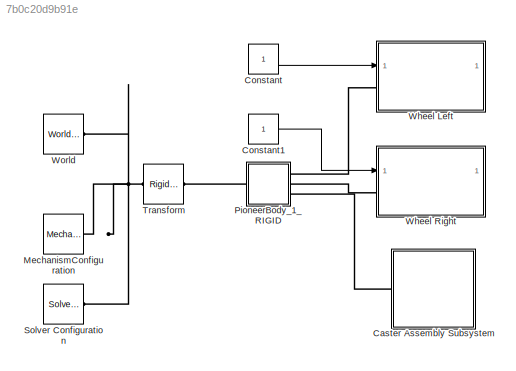
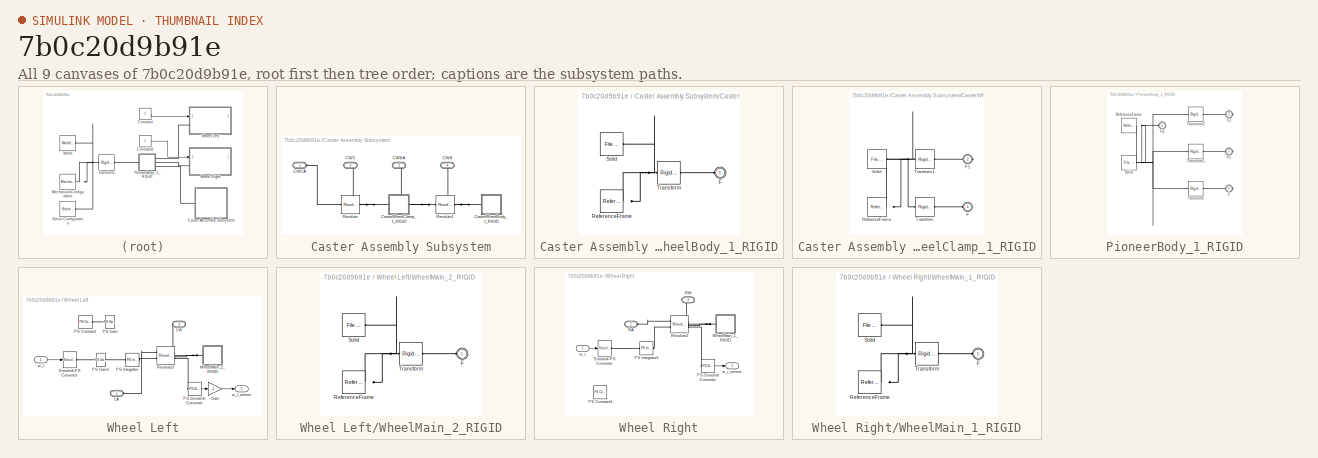
[diagram: thumbnail index - all 9 canvases of the model, root first then tree order]
MODEL slx_7b0c20d9b91e
KIND model
CONFIG AbsTol = auto
CONFIG EnableMultiTasking = on
CONFIG FixedStep = auto
CONFIG MaxStep = auto
CONFIG MinStep = auto
CONFIG RelTol = 1e-3
CONFIG SampleTimeConstraint = Unconstrained
CONFIG Solver = ode45
CONFIG SolverName = ode45
CONFIG StartTime = 0.0
CONFIG StopTime = 10.0
BLOCK [SubSystem] Caster Assembly Subsystem
  Ports = [0, 0, 0, 0, 0, 1, 3]
  RequestExecContextInheritance = off
BLOCK [PMIOPort] Caster Assembly Subsystem/CWB
  Port = 4
  Side = Right
BLOCK [PMIOPort] Caster Assembly Subsystem/CWBA
  Port = 3
  Side = Right
BLOCK [PMIOPort] Caster Assembly Subsystem/CWC
  Port = 2
  Side = Right
BLOCK [PMIOPort] Caster Assembly Subsystem/CWCA
  Side = Left
BLOCK [SubSystem] Caster Assembly Subsystem/CasterWheelBody_1_RIGID
  Ports = [0, 0, 0, 0, 0, 1]
  RequestExecContextInheritance = off
BLOCK [PMIOPort] Caster Assembly Subsystem/CasterWheelBody_1_RIGID/F
  Side = Left
BLOCK [Reference] Caster Assembly Subsystem/CasterWheelBody_1_RIGID/ReferenceFrame  REF=sm_lib/Frames and
Transforms/Reference
Frame
  Ports = [0, 0, 0, 0, 0, 0, 1]
  SourceBlock = sm_lib/Frames and\nTransforms/Reference\nFrame
  SourceProductBaseCode = MS
  SourceProductName = Simscape Multibody
  SourceType = Reference\nFrame
BLOCK [Reference] Caster Assembly Subsystem/CasterWheelBody_1_RIGID/Solid  REF=sm_lib/Body Elements/File Solid
  Ports = [0, 0, 0, 0, 0, 0, 1]
  SourceBlock = sm_lib/Body Elements/File Solid
  SourceProductBaseCode = MS
  SourceProductName = Simscape Multibody
  SourceType = File Solid
BLOCK [Reference] Caster Assembly Subsystem/CasterWheelBody_1_RIGID/Transform  REF=sm_lib/Frames and
Transforms/Rigid
Transform
  Ports = [0, 0, 0, 0, 0, 1, 1]
  SourceBlock = sm_lib/Frames and\nTransforms/Rigid\nTransform
  SourceProductBaseCode = MS
  SourceProductName = Simscape Multibody
  SourceType = Rigid\nTransform
BLOCK [SubSystem] Caster Assembly Subsystem/CasterWheelClamp_1_RIGID
  Ports = [0, 0, 0, 0, 0, 1, 1]
  RequestExecContextInheritance = off
BLOCK [PMIOPort] Caster Assembly Subsystem/CasterWheelClamp_1_RIGID/F
  Side = Left
BLOCK [PMIOPort] Caster Assembly Subsystem/CasterWheelClamp_1_RIGID/F1
  Port = 2
  Side = Right
BLOCK [Reference] Caster Assembly Subsystem/CasterWheelClamp_1_RIGID/ReferenceFrame  REF=sm_lib/Frames and
Transforms/Reference
Frame
  Ports = [0, 0, 0, 0, 0, 0, 1]
  SourceBlock = sm_lib/Frames and\nTransforms/Reference\nFrame
  SourceProductBaseCode = MS
  SourceProductName = Simscape Multibody
  SourceType = Reference\nFrame
BLOCK [Reference] Caster Assembly Subsystem/CasterWheelClamp_1_RIGID/Solid  REF=sm_lib/Body Elements/File Solid
  Ports = [0, 0, 0, 0, 0, 0, 1]
  SourceBlock = sm_lib/Body Elements/File Solid
  SourceProductBaseCode = MS
  SourceProductName = Simscape Multibody
  SourceType = File Solid
BLOCK [Reference] Caster Assembly Subsystem/CasterWheelClamp_1_RIGID/Transform  REF=sm_lib/Frames and
Transforms/Rigid
Transform
  Ports = [0, 0, 0, 0, 0, 1, 1]
  SourceBlock = sm_lib/Frames and\nTransforms/Rigid\nTransform
  SourceProductBaseCode = MS
  SourceProductName = Simscape Multibody
  SourceType = Rigid\nTransform
BLOCK [Reference] Caster Assembly Subsystem/CasterWheelClamp_1_RIGID/Transform1  REF=sm_lib/Frames and
Transforms/Rigid
Transform
  Ports = [0, 0, 0, 0, 0, 1, 1]
  SourceBlock = sm_lib/Frames and\nTransforms/Rigid\nTransform
  SourceProductBaseCode = MS
  SourceProductName = Simscape Multibody
  SourceType = Rigid\nTransform
BLOCK [Reference] Caster Assembly Subsystem/Revolute  REF=sm_lib/Joints/Revolute Joint
  Ports = [0, 0, 0, 0, 0, 1, 1]
  SourceBlock = sm_lib/Joints/Revolute Joint
  SourceProductBaseCode = MS
  SourceProductName = Simscape Multibody
  SourceType = Revolute Joint
BLOCK [Reference] Caster Assembly Subsystem/Revolute1  REF=sm_lib/Joints/Revolute Joint
  Ports = [0, 0, 0, 0, 0, 1, 1]
  SourceBlock = sm_lib/Joints/Revolute Joint
  SourceProductBaseCode = MS
  SourceProductName = Simscape Multibody
  SourceType = Revolute Joint
BLOCK [Constant] Constant
BLOCK [Constant] Constant1
BLOCK [Reference] MechanismConfiguration  REF=sm_lib/Utilities/Mechanism
Configuration
  Ports = [0, 0, 0, 0, 0, 0, 1]
  SourceBlock = sm_lib/Utilities/Mechanism\nConfiguration
  SourceProductBaseCode = MS
  SourceProductName = Simscape Multibody
  SourceType = Mechanism\nConfiguration
BLOCK [SubSystem] PioneerBody_1_RIGID
  Ports = [0, 0, 0, 0, 0, 1, 3]
  RequestExecContextInheritance = off
BLOCK [PMIOPort] PioneerBody_1_RIGID/F
  Port = 4
  Side = Right
BLOCK [PMIOPort] PioneerBody_1_RIGID/F1
  Port = 3
  Side = Right
BLOCK [PMIOPort] PioneerBody_1_RIGID/F2
  Port = 2
  Side = Right
BLOCK [PMIOPort] PioneerBody_1_RIGID/F3
  Side = Left
BLOCK [Reference] PioneerBody_1_RIGID/ReferenceFrame  REF=sm_lib/Frames and
Transforms/Reference
Frame
  Ports = [0, 0, 0, 0, 0, 0, 1]
  SourceBlock = sm_lib/Frames and\nTransforms/Reference\nFrame
  SourceProductBaseCode = MS
  SourceProductName = Simscape Multibody
  SourceType = Reference\nFrame
BLOCK [Reference] PioneerBody_1_RIGID/Solid  REF=sm_lib/Body Elements/File Solid
  Ports = [0, 0, 0, 0, 0, 0, 1]
  SourceBlock = sm_lib/Body Elements/File Solid
  SourceProductBaseCode = MS
  SourceProductName = Simscape Multibody
  SourceType = File Solid
BLOCK [Reference] PioneerBody_1_RIGID/Transform  REF=sm_lib/Frames and
Transforms/Rigid
Transform
  Ports = [0, 0, 0, 0, 0, 1, 1]
  SourceBlock = sm_lib/Frames and\nTransforms/Rigid\nTransform
  SourceProductBaseCode = MS
  SourceProductName = Simscape Multibody
  SourceType = Rigid\nTransform
BLOCK [Reference] PioneerBody_1_RIGID/Transform1  REF=sm_lib/Frames and
Transforms/Rigid
Transform
  Ports = [0, 0, 0, 0, 0, 1, 1]
  SourceBlock = sm_lib/Frames and\nTransforms/Rigid\nTransform
  SourceProductBaseCode = MS
  SourceProductName = Simscape Multibody
  SourceType = Rigid\nTransform
BLOCK [Reference] PioneerBody_1_RIGID/Transform2  REF=sm_lib/Frames and
Transforms/Rigid
Transform
  Ports = [0, 0, 0, 0, 0, 1, 1]
  SourceBlock = sm_lib/Frames and\nTransforms/Rigid\nTransform
  SourceProductBaseCode = MS
  SourceProductName = Simscape Multibody
  SourceType = Rigid\nTransform
BLOCK [Reference] Solver Configuration  REF=nesl_utility/Solver
Configuration
  Ports = [0, 0, 0, 0, 0, 0, 1]
  SourceBlock = nesl_utility/Solver\nConfiguration
  SourceProductBaseCode = SS
  SourceProductName = Simscape
  SourceType = Solver\nConfiguration
BLOCK [Reference] Transform  REF=sm_lib/Frames and
Transforms/Rigid
Transform
  Ports = [0, 0, 0, 0, 0, 1, 1]
  SourceBlock = sm_lib/Frames and\nTransforms/Rigid\nTransform
  SourceProductBaseCode = MS
  SourceProductName = Simscape Multibody
  SourceType = Rigid\nTransform
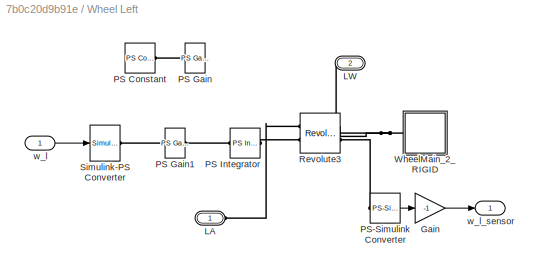
BLOCK [SubSystem] Wheel Left
  Ports = [1, 1, 0, 0, 0, 1, 1]
  RequestExecContextInheritance = off
BLOCK [Gain] Wheel Left/Gain
  Gain = -1
  OutDataTypeStr = Inherit: Inherit via internal rule
  ParamDataTypeStr = Inherit: Inherit via internal rule
  SaturateOnIntegerOverflow = off
BLOCK [PMIOPort] Wheel Left/LA
  Side = Left
BLOCK [PMIOPort] Wheel Left/LW
  Port = 2
  Side = Right
BLOCK [Reference] Wheel Left/PS Constant  REF=fl_lib/Physical Signals/Sources/PS Constant
  Commented = on
  Ports = [0, 0, 0, 0, 0, 0, 1]
  SourceBlock = fl_lib/Physical Signals/Sources/PS Constant
  SourceProductBaseCode = SS
  SourceProductName = Simscape
  SourceType = PS Constant
BLOCK [Reference] Wheel Left/PS Gain  REF=fl_lib/Physical Signals/Functions/PS Gain
  Commented = on
  Ports = [0, 0, 0, 0, 0, 1, 1]
  SourceBlock = fl_lib/Physical Signals/Functions/PS Gain
  SourceProductBaseCode = SS
  SourceProductName = Simscape
  SourceType = PS Gain
BLOCK [Reference] Wheel Left/PS Gain1  REF=fl_ps_legacy_lib/Legacy Physical
Signals/Functions/PS Gain
  Ports = [0, 0, 0, 0, 0, 1, 1]
  SourceBlock = fl_ps_legacy_lib/Legacy Physical\nSignals/Functions/PS Gain
  SourceProductBaseCode = SS
  SourceProductName = Simscape
  SourceType = PS Gain
BLOCK [Reference] Wheel Left/PS Integrator  REF=fl_ps_legacy_lib/Legacy Physical
Signals/Linear Operators/PS Integrator
  Ports = [0, 0, 0, 0, 0, 1, 1]
  SourceBlock = fl_ps_legacy_lib/Legacy Physical\nSignals/Linear Operators/PS Integrator
  SourceProductBaseCode = SS
  SourceProductName = Simscape
  SourceType = PS Integrator
BLOCK [Reference] Wheel Left/PS-Simulink Converter  REF=nesl_utility/PS-Simulink
Converter
  Ports = [0, 1, 0, 0, 0, 1]
  SourceBlock = nesl_utility/PS-Simulink\nConverter
  SourceProductBaseCode = SS
  SourceProductName = Simscape
  SourceType = PS-Simulink\nConverter
BLOCK [Reference] Wheel Left/Revolute3  REF=sm_lib/Joints/Revolute Joint
  Ports = [0, 0, 0, 0, 0, 2, 2]
  SourceBlock = sm_lib/Joints/Revolute Joint
  SourceProductBaseCode = MS
  SourceProductName = Simscape Multibody
  SourceType = Revolute Joint
BLOCK [Reference] Wheel Left/Simulink-PS Converter  REF=nesl_utility/Simulink-PS
Converter
  Ports = [1, 0, 0, 0, 0, 0, 1]
  SourceBlock = nesl_utility/Simulink-PS\nConverter
  SourceProductBaseCode = SS
  SourceProductName = Simscape
  SourceType = Simulink-PS\nConverter
BLOCK [SubSystem] Wheel Left/WheelMain_2_RIGID
  Ports = [0, 0, 0, 0, 0, 1]
  RequestExecContextInheritance = off
BLOCK [PMIOPort] Wheel Left/WheelMain_2_RIGID/F
  Side = Left
BLOCK [Reference] Wheel Left/WheelMain_2_RIGID/ReferenceFrame  REF=sm_lib/Frames and
Transforms/Reference
Frame
  Ports = [0, 0, 0, 0, 0, 0, 1]
  SourceBlock = sm_lib/Frames and\nTransforms/Reference\nFrame
  SourceProductBaseCode = MS
  SourceProductName = Simscape Multibody
  SourceType = Reference\nFrame
BLOCK [Reference] Wheel Left/WheelMain_2_RIGID/Solid  REF=sm_lib/Body Elements/File Solid
  Ports = [0, 0, 0, 0, 0, 0, 1]
  SourceBlock = sm_lib/Body Elements/File Solid
  SourceProductBaseCode = MS
  SourceProductName = Simscape Multibody
  SourceType = File Solid
BLOCK [Reference] Wheel Left/WheelMain_2_RIGID/Transform  REF=sm_lib/Frames and
Transforms/Rigid
Transform
  Ports = [0, 0, 0, 0, 0, 1, 1]
  SourceBlock = sm_lib/Frames and\nTransforms/Rigid\nTransform
  SourceProductBaseCode = MS
  SourceProductName = Simscape Multibody
  SourceType = Rigid\nTransform
BLOCK [Inport] Wheel Left/w_l
  IconDisplay = Port number
BLOCK [Outport] Wheel Left/w_l_sensor
  IconDisplay = Port number
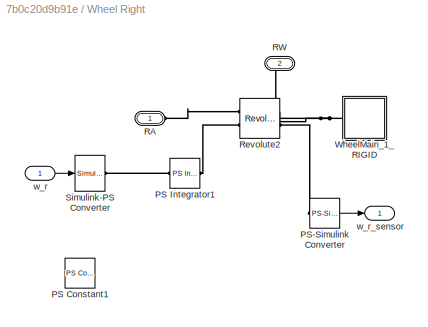
BLOCK [SubSystem] Wheel Right
  Ports = [1, 1, 0, 0, 0, 1, 1]
  RequestExecContextInheritance = off
BLOCK [Reference] Wheel Right/PS Constant1  REF=fl_lib/Physical Signals/Sources/PS Constant
  Commented = on
  Ports = [0, 0, 0, 0, 0, 0, 1]
  SourceBlock = fl_lib/Physical Signals/Sources/PS Constant
  SourceProductBaseCode = SS
  SourceProductName = Simscape
  SourceType = PS Constant
BLOCK [Reference] Wheel Right/PS Integrator1  REF=fl_ps_legacy_lib/Legacy Physical
Signals/Linear Operators/PS Integrator
  Ports = [0, 0, 0, 0, 0, 1, 1]
  SourceBlock = fl_ps_legacy_lib/Legacy Physical\nSignals/Linear Operators/PS Integrator
  SourceProductBaseCode = SS
  SourceProductName = Simscape
  SourceType = PS Integrator
BLOCK [Reference] Wheel Right/PS-Simulink Converter  REF=nesl_utility/PS-Simulink
Converter
  Ports = [0, 1, 0, 0, 0, 1]
  SourceBlock = nesl_utility/PS-Simulink\nConverter
  SourceProductBaseCode = SS
  SourceProductName = Simscape
  SourceType = PS-Simulink\nConverter
BLOCK [PMIOPort] Wheel Right/RA
  Side = Left
BLOCK [PMIOPort] Wheel Right/RW
  Port = 2
  Side = Right
BLOCK [Reference] Wheel Right/Revolute2  REF=sm_lib/Joints/Revolute Joint
  Ports = [0, 0, 0, 0, 0, 2, 2]
  SourceBlock = sm_lib/Joints/Revolute Joint
  SourceProductBaseCode = MS
  SourceProductName = Simscape Multibody
  SourceType = Revolute Joint
BLOCK [Reference] Wheel Right/Simulink-PS Converter  REF=nesl_utility/Simulink-PS
Converter
  Ports = [1, 0, 0, 0, 0, 0, 1]
  SourceBlock = nesl_utility/Simulink-PS\nConverter
  SourceProductBaseCode = SS
  SourceProductName = Simscape
  SourceType = Simulink-PS\nConverter
BLOCK [SubSystem] Wheel Right/WheelMain_1_RIGID
  Ports = [0, 0, 0, 0, 0, 1]
  RequestExecContextInheritance = off
BLOCK [PMIOPort] Wheel Right/WheelMain_1_RIGID/F
  Side = Left
BLOCK [Reference] Wheel Right/WheelMain_1_RIGID/ReferenceFrame  REF=sm_lib/Frames and
Transforms/Reference
Frame
  Ports = [0, 0, 0, 0, 0, 0, 1]
  SourceBlock = sm_lib/Frames and\nTransforms/Reference\nFrame
  SourceProductBaseCode = MS
  SourceProductName = Simscape Multibody
  SourceType = Reference\nFrame
BLOCK [Reference] Wheel Right/WheelMain_1_RIGID/Solid  REF=sm_lib/Body Elements/File Solid
  Ports = [0, 0, 0, 0, 0, 0, 1]
  SourceBlock = sm_lib/Body Elements/File Solid
  SourceProductBaseCode = MS
  SourceProductName = Simscape Multibody
  SourceType = File Solid
BLOCK [Reference] Wheel Right/WheelMain_1_RIGID/Transform  REF=sm_lib/Frames and
Transforms/Rigid
Transform
  Ports = [0, 0, 0, 0, 0, 1, 1]
  SourceBlock = sm_lib/Frames and\nTransforms/Rigid\nTransform
  SourceProductBaseCode = MS
  SourceProductName = Simscape Multibody
  SourceType = Rigid\nTransform
BLOCK [Inport] Wheel Right/w_r
  IconDisplay = Port number
BLOCK [Outport] Wheel Right/w_r_sensor
  IconDisplay = Port number
BLOCK [Reference] World  REF=sm_lib/Frames and
Transforms/World Frame
  Ports = [0, 0, 0, 0, 0, 0, 1]
  SourceBlock = sm_lib/Frames and\nTransforms/World Frame
  SourceProductBaseCode = MS
  SourceProductName = Simscape Multibody
  SourceType = World Frame
LINE Constant1:1 -> Wheel Right:1
LINE Constant:1 -> Wheel Left:1
LINE Wheel Left/Gain:1 -> Wheel Left/w_l_sensor:1
LINE Wheel Left/PS-Simulink Converter:1 -> Wheel Left/Gain:1
LINE Wheel Left/w_l:1 -> Wheel Left/Simulink-PS Converter:1
LINE Wheel Right/PS-Simulink Converter:1 -> Wheel Right/w_r_sensor:1
LINE Wheel Right/w_r:1 -> Wheel Right/Simulink-PS Converter:1
PNET net1: Caster Assembly Subsystem/CWB:RConn1 -- Caster Assembly Subsystem/CasterWheelBody_1_RIGID:LConn1 -- Caster Assembly Subsystem/Revolute1:RConn1
PNET net2: Caster Assembly Subsystem/CWBA:RConn1 -- Caster Assembly Subsystem/CasterWheelClamp_1_RIGID:RConn1 -- Caster Assembly Subsystem/Revolute1:LConn1
PNET net3: Caster Assembly Subsystem/CWC:RConn1 -- Caster Assembly Subsystem/CasterWheelClamp_1_RIGID:LConn1 -- Caster Assembly Subsystem/Revolute:RConn1
PLINE Caster Assembly Subsystem/CWCA:RConn1 -- Caster Assembly Subsystem/Revolute:LConn1
PLINE Caster Assembly Subsystem/CasterWheelBody_1_RIGID/F:RConn1 -- Caster Assembly Subsystem/CasterWheelBody_1_RIGID/Transform:RConn1
PNET net4: Caster Assembly Subsystem/CasterWheelBody_1_RIGID/ReferenceFrame:RConn1 -- Caster Assembly Subsystem/CasterWheelBody_1_RIGID/Solid:RConn1 -- Caster Assembly Subsystem/CasterWheelBody_1_RIGID/Transform:LConn1
PLINE Caster Assembly Subsystem/CasterWheelClamp_1_RIGID/F1:RConn1 -- Caster Assembly Subsystem/CasterWheelClamp_1_RIGID/Transform1:RConn1
PLINE Caster Assembly Subsystem/CasterWheelClamp_1_RIGID/F:RConn1 -- Caster Assembly Subsystem/CasterWheelClamp_1_RIGID/Transform:RConn1
PNET net5: Caster Assembly Subsystem/CasterWheelClamp_1_RIGID/ReferenceFrame:RConn1 -- Caster Assembly Subsystem/CasterWheelClamp_1_RIGID/Solid:RConn1 -- Caster Assembly Subsystem/CasterWheelClamp_1_RIGID/Transform1:LConn1 -- Caster Assembly Subsystem/CasterWheelClamp_1_RIGID/Transform:LConn1
PLINE Caster Assembly Subsystem:LConn1 -- PioneerBody_1_RIGID:RConn3
PNET net6: MechanismConfiguration:RConn1 -- Solver Configuration:RConn1 -- Transform:LConn1 -- World:RConn1
PLINE PioneerBody_1_RIGID/F1:RConn1 -- PioneerBody_1_RIGID/Transform1:RConn1
PLINE PioneerBody_1_RIGID/F2:RConn1 -- PioneerBody_1_RIGID/Transform2:RConn1
PNET net7: PioneerBody_1_RIGID/F3:RConn1 -- PioneerBody_1_RIGID/ReferenceFrame:RConn1 -- PioneerBody_1_RIGID/Solid:RConn1 -- PioneerBody_1_RIGID/Transform1:LConn1 -- PioneerBody_1_RIGID/Transform2:LConn1 -- PioneerBody_1_RIGID/Transform:LConn1
PLINE PioneerBody_1_RIGID/F:RConn1 -- PioneerBody_1_RIGID/Transform:RConn1
PLINE PioneerBody_1_RIGID:LConn1 -- Transform:RConn1
PLINE PioneerBody_1_RIGID:RConn1 -- Wheel Left:LConn1
PLINE PioneerBody_1_RIGID:RConn2 -- Wheel Right:LConn1
PLINE Wheel Left/LA:RConn1 -- Wheel Left/Revolute3:LConn1
PNET net8: Wheel Left/LW:RConn1 -- Wheel Left/Revolute3:RConn1 -- Wheel Left/WheelMain_2_RIGID:LConn1
PLINE Wheel Left/PS Constant:RConn1 -- Wheel Left/PS Gain:LConn1
PLINE Wheel Left/PS Gain1:LConn1 -- Wheel Left/Simulink-PS Converter:RConn1
PLINE Wheel Left/PS Gain1:RConn1 -- Wheel Left/PS Integrator:LConn1
PLINE Wheel Left/PS Integrator:RConn1 -- Wheel Left/Revolute3:LConn2
PLINE Wheel Left/PS-Simulink Converter:LConn1 -- Wheel Left/Revolute3:RConn2
PLINE Wheel Left/WheelMain_2_RIGID/F:RConn1 -- Wheel Left/WheelMain_2_RIGID/Transform:RConn1
PNET net9: Wheel Left/WheelMain_2_RIGID/ReferenceFrame:RConn1 -- Wheel Left/WheelMain_2_RIGID/Solid:RConn1 -- Wheel Left/WheelMain_2_RIGID/Transform:LConn1
PLINE Wheel Right/PS Integrator1:LConn1 -- Wheel Right/Simulink-PS Converter:RConn1
PLINE Wheel Right/PS Integrator1:RConn1 -- Wheel Right/Revolute2:LConn2
PLINE Wheel Right/PS-Simulink Converter:LConn1 -- Wheel Right/Revolute2:RConn2
PLINE Wheel Right/RA:RConn1 -- Wheel Right/Revolute2:LConn1
PNET net10: Wheel Right/RW:RConn1 -- Wheel Right/Revolute2:RConn1 -- Wheel Right/WheelMain_1_RIGID:LConn1
PLINE Wheel Right/WheelMain_1_RIGID/F:RConn1 -- Wheel Right/WheelMain_1_RIGID/Transform:RConn1
PNET net11: Wheel Right/WheelMain_1_RIGID/ReferenceFrame:RConn1 -- Wheel Right/WheelMain_1_RIGID/Solid:RConn1 -- Wheel Right/WheelMain_1_RIGID/Transform:LConn1
note: PNET lines group multi-terminal physical nets as a canonical sorted terminal list (undirected conserving connections); 2-terminal nets keep the pairwise PLINE form
